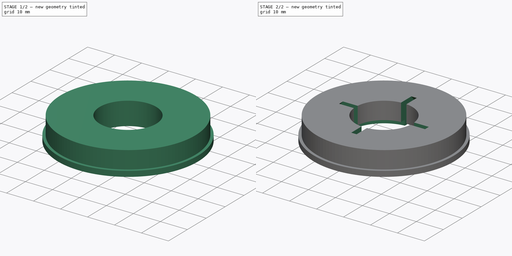
[diagram: build sequence overview — one tinted view per stage of 2, left to right]
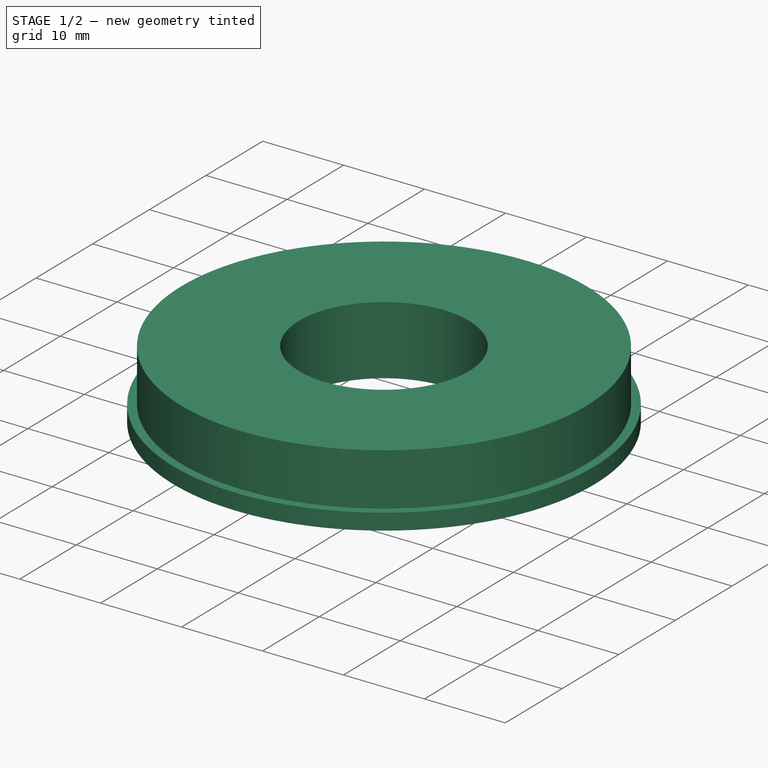
[diagram: stage 1 of 2 — iso view after this stage's code; geometry added in this stage tinted green]
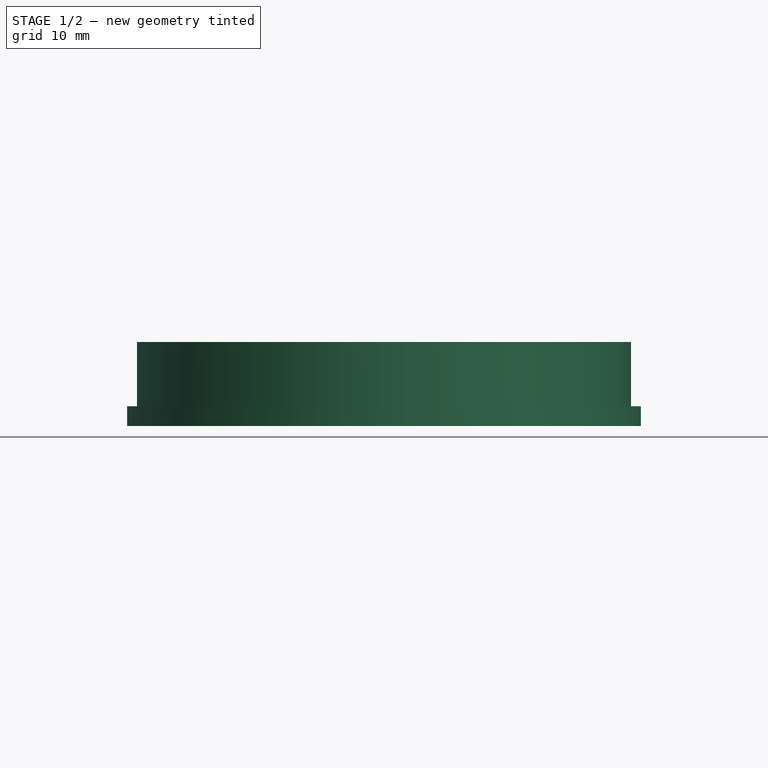
[diagram: stage 1 of 2 — front view after this stage's code; geometry added in this stage tinted green]
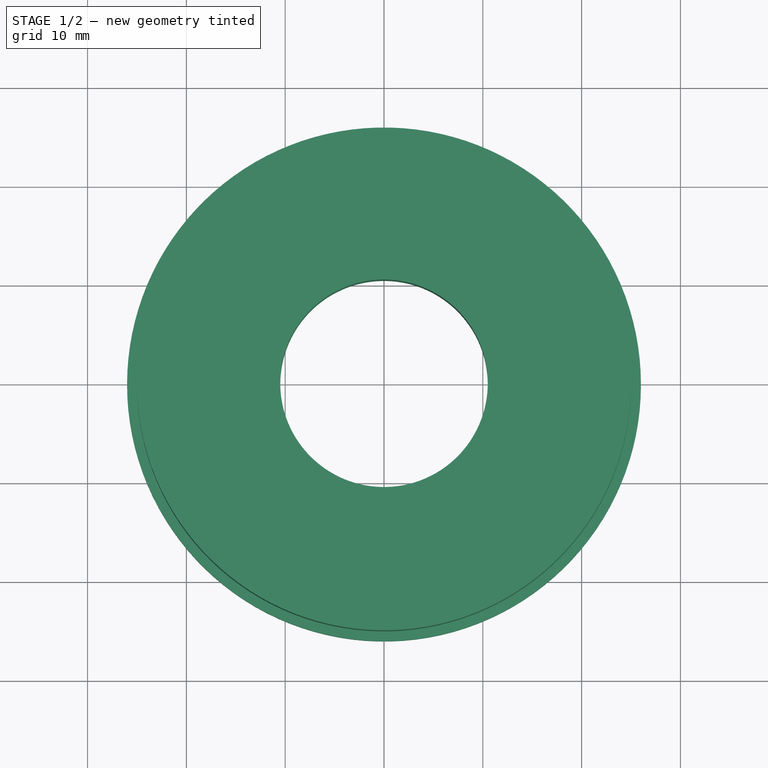
[diagram: stage 1 of 2 — top view after this stage's code; geometry added in this stage tinted green]
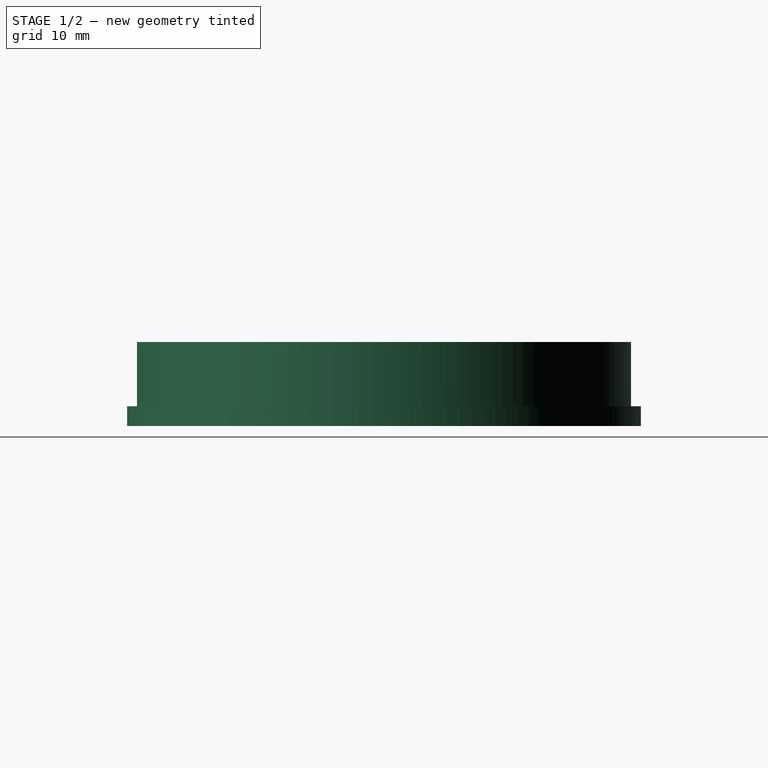
[diagram: stage 1 of 2 — right view after this stage's code; geometry added in this stage tinted green]
FCSTD DOCUMENT  (FreeCAD 0.20R29603 (Git))
Label: bread maker repair 2
License: All rights reserved
LicenseURL: http://en.wikipedia.org/wiki/All_rights_reserved
objects: Sketcher::SketchObject×5, PartDesign::Pad×2, PartDesign::SubtractiveLoft×1, PartDesign::Pocket×1, PartDesign::Body×1
note: 14 computed .brp shape members not serialized (recipe doc carries the construction recipe); baked Part::Feature solids carry a one-line shape summary decoded from their .brp

FEATURE [Sketcher::SketchObject] Sketch
  FullyConstrained = true
  MapMode = 5
  Support = -> [XY_Plane]
  sketch-geometry (2):
    g0: Circle CenterX=0 CenterY=0 CenterZ=0 NormalX=0 NormalY=0 NormalZ=1 AngleXU=0 Radius=10.5
    g1: Circle CenterX=0 CenterY=0 CenterZ=0 NormalX=0 NormalY=0 NormalZ=1 AngleXU=0 Radius=26
  constraints (4):
    c: Coincident(g0,g-1)
    c: Coincident(g1,g0)
    c: Diameter(g0) = 21
    c: Diameter(g1) = 52
FEATURE [PartDesign::Pad] Pad
  Direction = (0,0,1)
  Length = 2
  Length2 = 10
  Profile = -> Sketch
  ReferenceAxis = -> Sketch [N_Axis]
  Type = 0
FEATURE [Sketcher::SketchObject] Sketch001
  FullyConstrained = true
  MapMode = 5
  Support = -> [XY_Plane]
  sketch-geometry (2):
    g0: Circle CenterX=0 CenterY=0 CenterZ=0 NormalX=0 NormalY=0 NormalZ=1 AngleXU=0 Radius=10.5
    g1: Circle CenterX=0 CenterY=0 CenterZ=0 NormalX=0 NormalY=0 NormalZ=1 AngleXU=0 Radius=25
  constraints (4):
    c: Coincident(g0,g-1)
    c: Coincident(g1,g0)
    c: Diameter(g0) = 21
    c: Diameter(g1) = 50
FEATURE [PartDesign::Pad] Pad001
  BaseFeature = -> Pad
  Direction = (0,0,1)
  Length = 8.5
  Length2 = 10
  Profile = -> Sketch001
  ReferenceAxis = -> Sketch001 [N_Axis]
  Type = 0
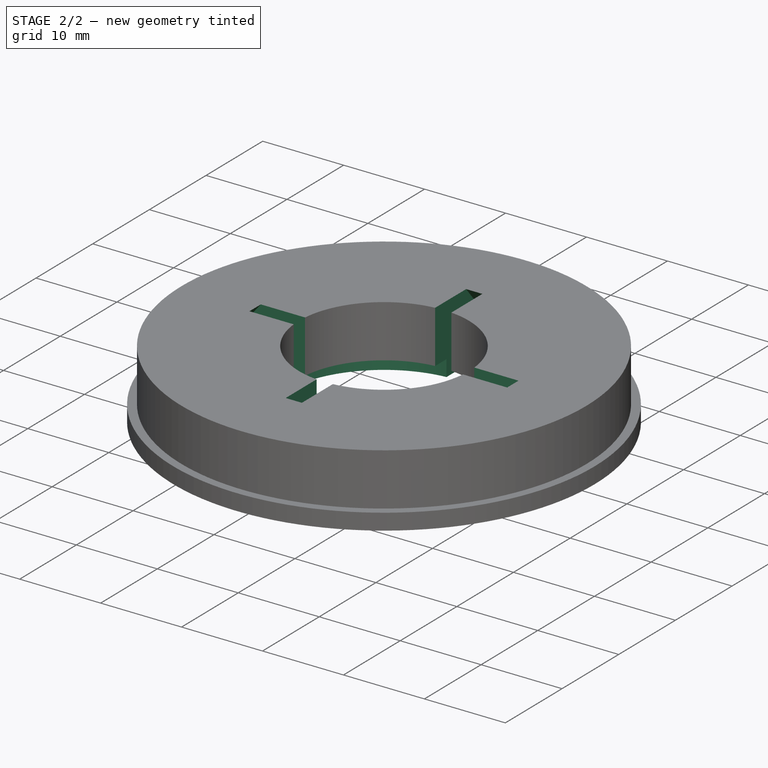
[diagram: stage 2 of 2 — iso view after this stage's code; geometry added in this stage tinted green]
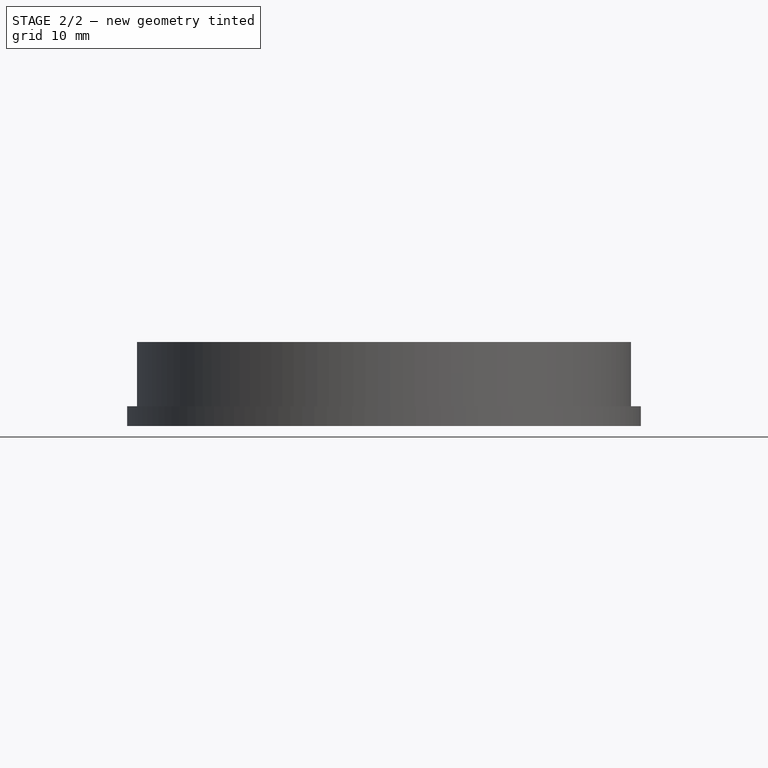
[diagram: stage 2 of 2 — front view after this stage's code; geometry added in this stage tinted green]
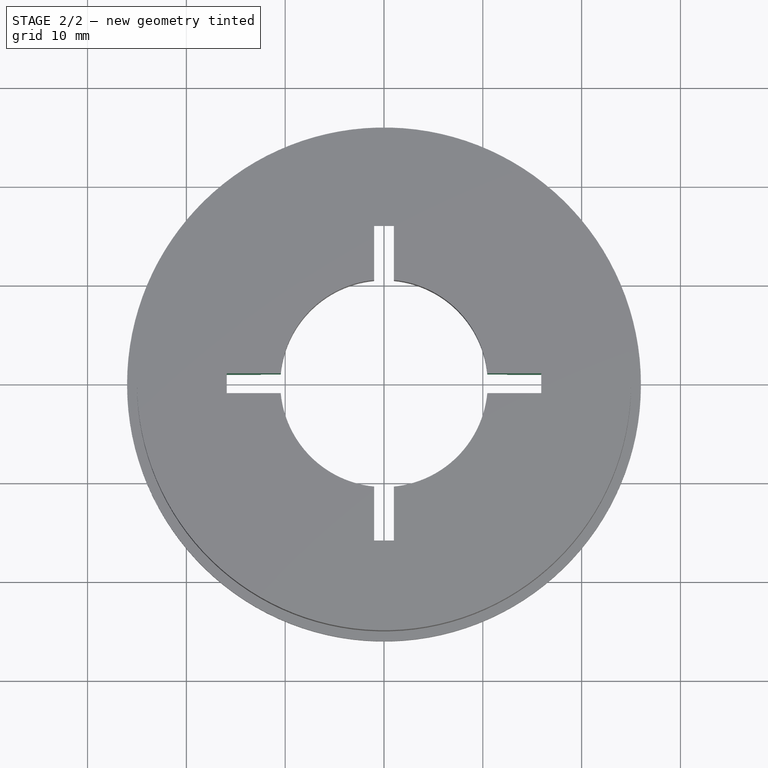
[diagram: stage 2 of 2 — top view after this stage's code; geometry added in this stage tinted green]
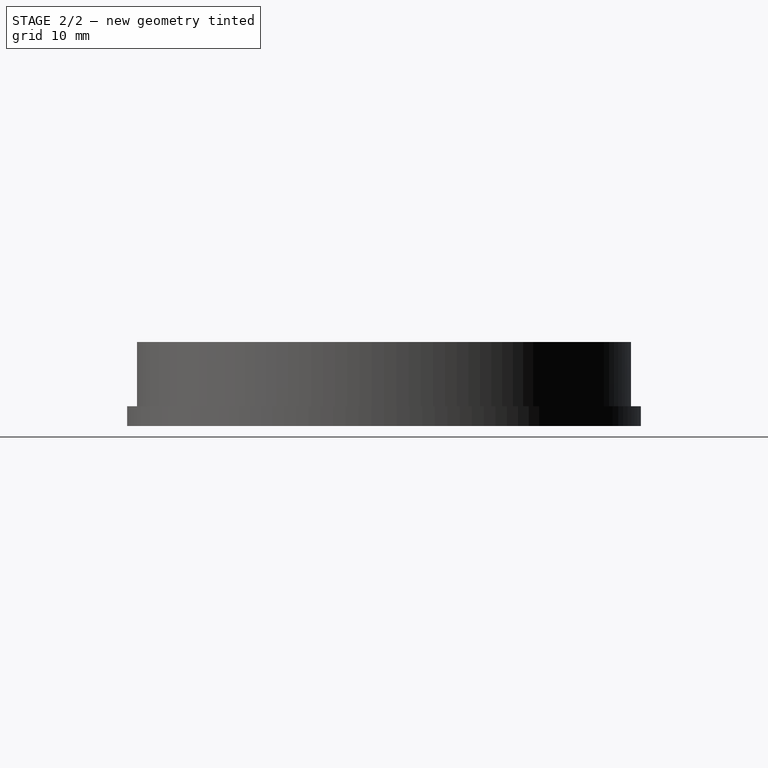
[diagram: stage 2 of 2 — right view after this stage's code; geometry added in this stage tinted green]
FEATURE [Sketcher::SketchObject] Sketch002
  FullyConstrained = true
  MapMode = 5
  Support = -> [XY_Plane]
  sketch-geometry (12):
    g0: LineSegment StartX=1 StartY=23 StartZ=0 EndX=-1 EndY=23 EndZ=0
    g1: LineSegment StartX=-1 StartY=23 StartZ=0 EndX=-1 EndY=1 EndZ=0
    g2: LineSegment StartX=-1 StartY=1 StartZ=0 EndX=-23 EndY=1 EndZ=0
    g3: LineSegment StartX=-23 StartY=1 StartZ=0 EndX=-23 EndY=-1 EndZ=0
    g4: LineSegment StartX=-23 StartY=-1 StartZ=0 EndX=-1 EndY=-1 EndZ=0
    g5: LineSegment StartX=-1 StartY=-1 StartZ=0 EndX=-1 EndY=-23 EndZ=0
    g6: LineSegment StartX=-1 StartY=-23 StartZ=0 EndX=1 EndY=-23 EndZ=0
    g7: LineSegment StartX=1 StartY=-23 StartZ=0 EndX=1 EndY=-1 EndZ=0
    g8: LineSegment StartX=1 StartY=-1 StartZ=0 EndX=23 EndY=-1 EndZ=0
    g9: LineSegment StartX=23 StartY=-1 StartZ=0 EndX=23 EndY=1 EndZ=0
    g10: LineSegment StartX=23 StartY=1 StartZ=0 EndX=1 EndY=1 EndZ=0
    g11: LineSegment StartX=1 StartY=1 StartZ=0 EndX=1 EndY=23 EndZ=0
  constraints (30):
    c: Coincident(g0,g1)
    c: Vertical(g1)
    c: Coincident(g1,g2)
    c: Horizontal(g2)
    c: Coincident(g2,g3)
    c: Coincident(g3,g4)
    c: Horizontal(g4)
    c: Coincident(g4,g5)
    c: Coincident(g5,g6)
    c: Coincident(g6,g7)
    c: Vertical(g7)
    c: Coincident(g7,g8)
    c: Horizontal(g8)
    c: Coincident(g8,g9)
    c: Coincident(g9,g10)
    c: Horizontal(g10)
    c: Coincident(g10,g11)
    c: Coincident(g11,g0)
    c: Vertical(g11)
    c: Symmetric(g2,g3,g-1)
    c: Symmetric(g0,g0,g-2)
    c: Symmetric(g9,g8,g-1)
    c: Symmetric(g5,g6,g-2)
    c: DistanceY(g3,g3) = 2
    c: DistanceX(g0,g0) = 2
    c: Vertical(g5)
    c: Symmetric(g5,g0,g-1)
    c: Symmetric(g8,g3,g-2)
    c: DistanceX(g2,g9) = 46
    c: DistanceY(g6,g0) = 46
FEATURE [Sketcher::SketchObject] Sketch003
  AttachmentOffset = pos=(0,0,12) rot=(0,0,1;0rad)
  FullyConstrained = true
  MapMode = 5
  Placement = pos=(0,0,12) rot=(0,0,1;0rad)
  Support = -> [XY_Plane]
  sketch-geometry (12):
    g0: LineSegment StartX=1 StartY=13 StartZ=0 EndX=-1 EndY=13 EndZ=0
    g1: LineSegment StartX=-1 StartY=13 StartZ=0 EndX=-1 EndY=1 EndZ=0
    g2: LineSegment StartX=-1 StartY=1 StartZ=0 EndX=-13 EndY=1 EndZ=0
    g3: LineSegment StartX=-13 StartY=1 StartZ=0 EndX=-13 EndY=-1 EndZ=0
    g4: LineSegment StartX=-13 StartY=-1 StartZ=0 EndX=-1 EndY=-1 EndZ=0
    g5: LineSegment StartX=-1 StartY=-1 StartZ=0 EndX=-1 EndY=-13 EndZ=0
    g6: LineSegment StartX=-1 StartY=-13 StartZ=0 EndX=1 EndY=-13 EndZ=0
    g7: LineSegment StartX=1 StartY=-13 StartZ=0 EndX=1 EndY=-1 EndZ=0
    g8: LineSegment StartX=1 StartY=-1 StartZ=0 EndX=13 EndY=-1 EndZ=0
    g9: LineSegment StartX=13 StartY=-1 StartZ=0 EndX=13 EndY=1 EndZ=0
    g10: LineSegment StartX=13 StartY=1 StartZ=0 EndX=1 EndY=1 EndZ=0
    g11: LineSegment StartX=1 StartY=1 StartZ=0 EndX=1 EndY=13 EndZ=0
  constraints (30):
    c: Coincident(g0,g1)
    c: Vertical(g1)
    c: Coincident(g1,g2)
    c: Horizontal(g2)
    c: Coincident(g2,g3)
    c: Coincident(g3,g4)
    c: Horizontal(g4)
    c: Coincident(g4,g5)
    c: Coincident(g5,g6)
    c: Coincident(g6,g7)
    c: Vertical(g7)
    c: Coincident(g7,g8)
    c: Horizontal(g8)
    c: Coincident(g8,g9)
    c: Coincident(g9,g10)
    c: Horizontal(g10)
    c: Coincident(g10,g11)
    c: Coincident(g11,g0)
    c: Vertical(g11)
    c: Symmetric(g2,g3,g-1)
    c: Symmetric(g0,g0,g-2)
    c: Symmetric(g9,g8,g-1)
    c: Symmetric(g5,g6,g-2)
    c: DistanceY(g3,g3) = 2
    c: DistanceX(g0,g0) = 2
    c: Vertical(g5)
    c: Symmetric(g5,g0,g-1)
    c: Symmetric(g8,g3,g-2)
    c: DistanceX(g2,g9) = 26
    c: DistanceY(g6,g0) = 26
FEATURE [PartDesign::SubtractiveLoft] SubtractiveLoft
  BaseFeature = -> Pad001
  Closed = false
  Profile = -> Sketch002
  Ruled = false
  Sections = -> [Sketch003]
FEATURE [Sketcher::SketchObject] Sketch004
  FullyConstrained = true
  MapMode = 5
  Support = -> [XY_Plane]
  sketch-geometry (1):
    g0: Circle CenterX=0 CenterY=0 CenterZ=0 NormalX=0 NormalY=0 NormalZ=1 AngleXU=0 Radius=12.5
  constraints (2):
    c: Coincident(g0,g-1)
    c: Diameter(g0) = 25
FEATURE [PartDesign::Pocket] Pocket
  BaseFeature = -> SubtractiveLoft
  Direction = (0,0,-1)
  Length = 2
  Length2 = 5
  Profile = -> Sketch004
  ReferenceAxis = -> Sketch004 [N_Axis]
  Reversed = true
  Type = 0
FEATURE [PartDesign::Body] Body
  Group = -> [Sketch,Pad,Sketch001,Pad001,Sketch002,Sketch003,SubtractiveLoft,Sketch004,Pocket]
  Origin = -> Origin
  Tip = -> Pocket
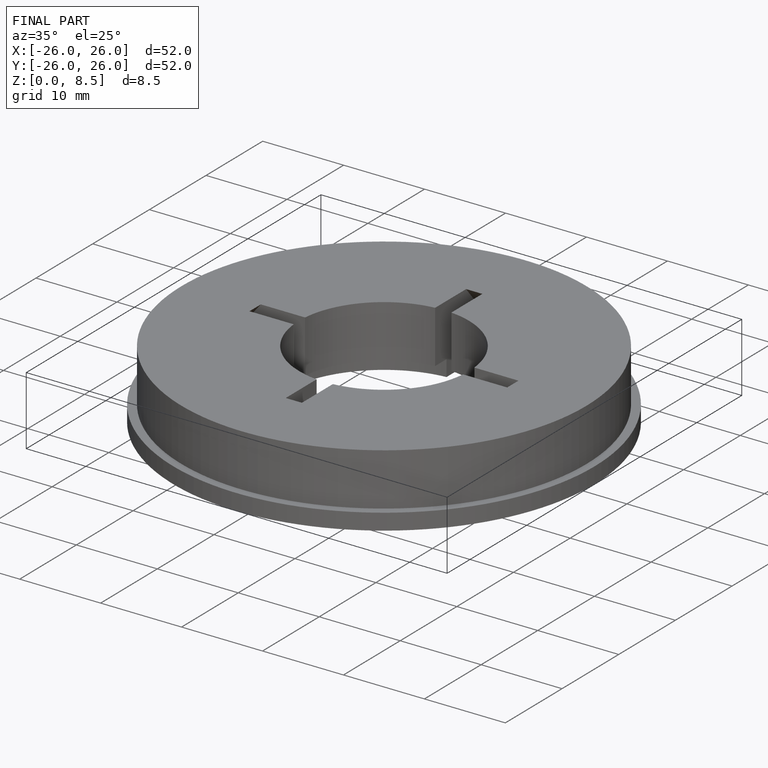
[diagram: finished part — iso view with bounding-box wireframe]
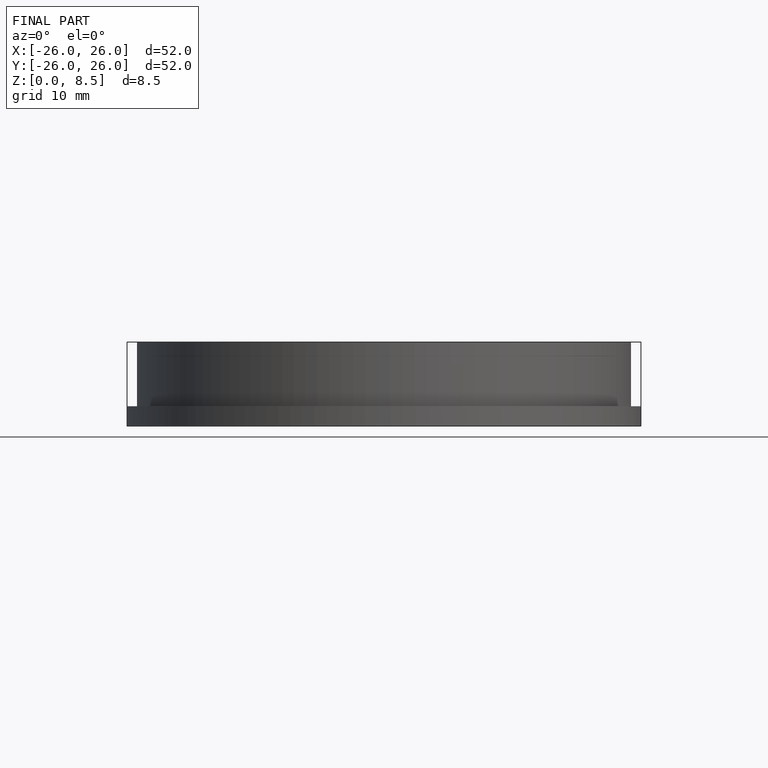
[diagram: finished part — front view with bounding-box wireframe]
